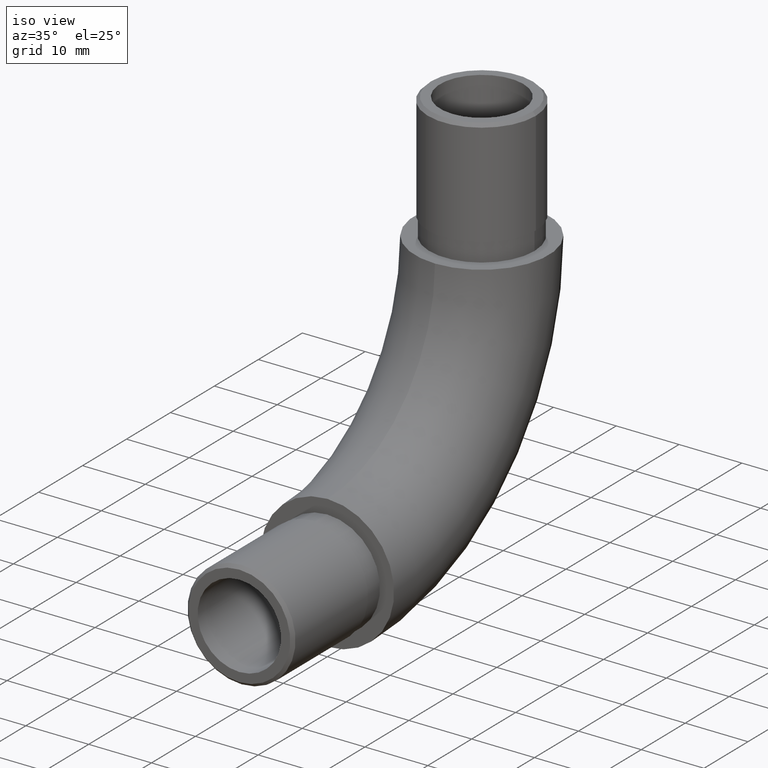
[diagram: clean part render]
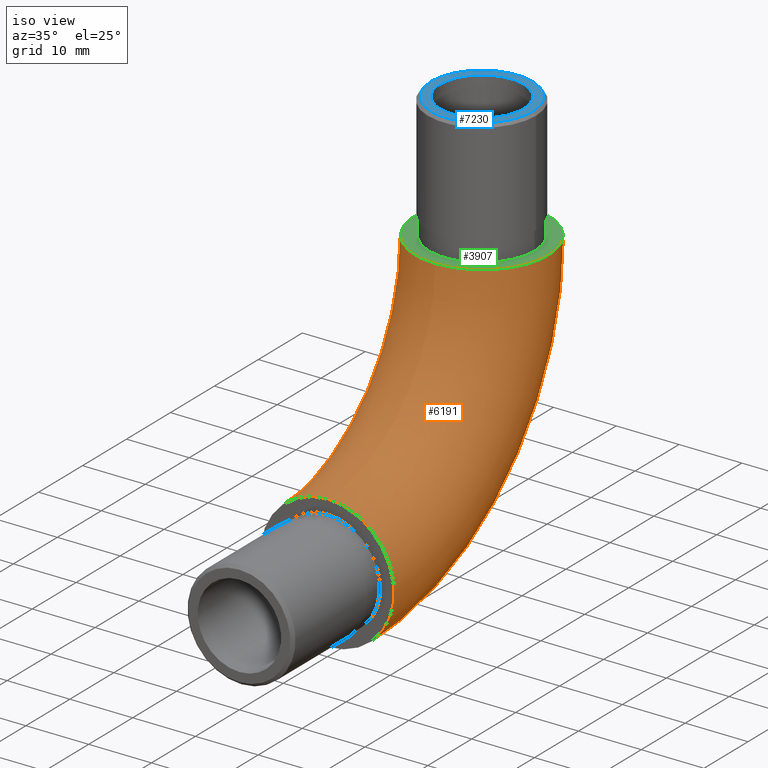
[diagram: same view with three faces highlighted in distinct colors, each labeled with its STEP entity id]
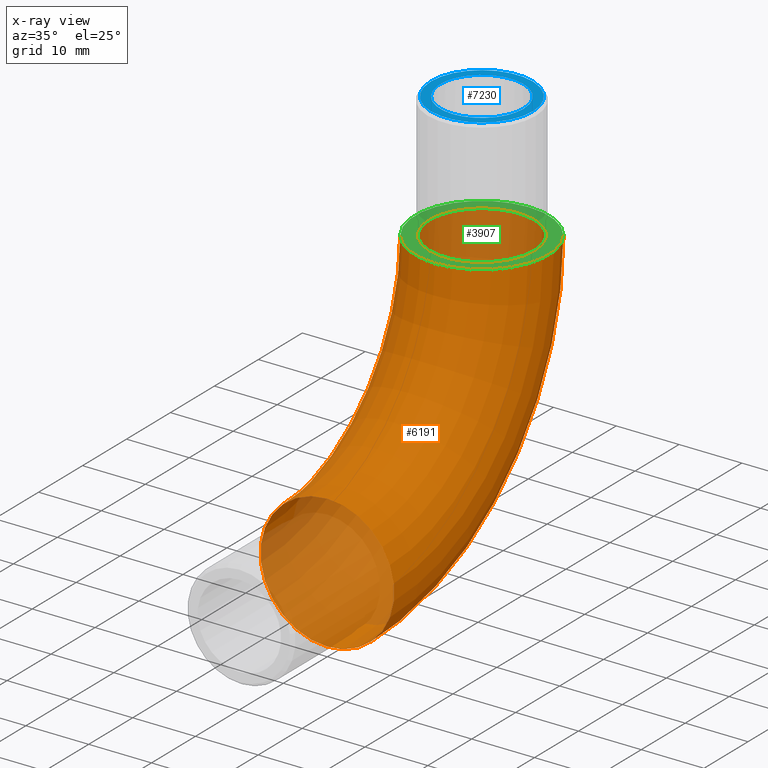
[diagram: x-ray of the same camera — body ghosted, the three highlighted faces saturated]
A machine part, iso view with three faces highlighted in distinct colors.
The next image is the same camera in x-ray (body ghosted, the three faces saturated) — at least one of them is partly hidden behind the body in this view.
Their STEP definitions:

[orange] entity #6191 — the highlighted toroidal blend (fillet) surface has major radius 35.15 mm and minor (blend) radius 10.65 mm.
#367 = EDGE_CURVE ( 'NONE', #9327, #9327, #9104, .T. ) ;
#540 = ORIENTED_EDGE ( 'NONE', *, *, #9462, .T. ) ;
#728 = DIRECTION ( 'NONE',  ( 0.0000000000000000000, 0.0000000000000000000, 1.000000000000000000 ) ) ;
#823 = ORIENTED_EDGE ( 'NONE', *, *, #367, .F. ) ;
#1932 = AXIS2_PLACEMENT_3D ( 'NONE', #9878, #5102, #3002 ) ;
#2001 = CARTESIAN_POINT ( 'NONE',  ( 0.0000000000000000000, 0.0000000000000000000, 21.30000000000000100 ) ) ;
#2927 = EDGE_LOOP ( 'NONE', ( #540 ) ) ;
#3002 = DIRECTION ( 'NONE',  ( 0.0000000000000000000, 0.0000000000000000000, 1.000000000000000000 ) ) ;
#5049 = CIRCLE ( 'NONE', #10344, 10.65000000000000000 ) ;
#5102 = DIRECTION ( 'NONE',  ( -1.000000000000000000, -0.0000000000000000000, -0.0000000000000000000 ) ) ;
#5300 = DIRECTION ( 'NONE',  ( 0.0000000000000000000, -1.000000000000000000, 0.0000000000000000000 ) ) ;
#5563 = TOROIDAL_SURFACE ( 'NONE', #1932, 35.15000000000000600, 10.65000000000000000 ) ;
#6191 = ADVANCED_FACE ( 'NONE', ( #8792, #10758 ), #5563, .T. ) ;
#7292 = CARTESIAN_POINT ( 'NONE',  ( 0.0000000000000000000, 0.0000000000000000000, 10.65000000000000000 ) ) ;
#7650 = VERTEX_POINT ( 'NONE', #2001 ) ;
#8792 = FACE_OUTER_BOUND ( 'NONE', #10911, .T. ) ;
#9104 = CIRCLE ( 'NONE', #9924, 10.65000000000000000 ) ;
#9327 = VERTEX_POINT ( 'NONE', #9998 ) ;
#9462 = EDGE_CURVE ( 'NONE', #7650, #7650, #5049, .T. ) ;
#9556 = DIRECTION ( 'NONE',  ( 0.0000000000000000000, 1.000000000000000000, 0.0000000000000000000 ) ) ;
#9878 = CARTESIAN_POINT ( 'NONE',  ( 0.0000000000000000000, -6.938893903907228400E-015, 45.80000000000000400 ) ) ;
#9924 = AXIS2_PLACEMENT_3D ( 'NONE', #12080, #10047, #5300 ) ;
#9998 = CARTESIAN_POINT ( 'NONE',  ( 0.0000000000000000000, 24.50000000000000000, 45.80000000000000400 ) ) ;
#10047 = DIRECTION ( 'NONE',  ( 0.0000000000000000000, 6.123233995736766000E-017, 1.000000000000000000 ) ) ;
#10344 = AXIS2_PLACEMENT_3D ( 'NONE', #7292, #9556, #728 ) ;
#10758 = FACE_OUTER_BOUND ( 'NONE', #2927, .T. ) ;
#10911 = EDGE_LOOP ( 'NONE', ( #823 ) ) ;
#12080 = CARTESIAN_POINT ( 'NONE',  ( 0.0000000000000000000, 35.14999999999999900, 45.80000000000000400 ) ) ;

[blue] entity #7230 — the highlighted planar face has unit normal (0, 0, 1).
#151 = FACE_BOUND ( 'NONE', #11834, .T. ) ;
#427 = DIRECTION ( 'NONE',  ( 0.0000000000000000000, 0.0000000000000000000, 1.000000000000000000 ) ) ;
#471 = CARTESIAN_POINT ( 'NONE',  ( 0.0000000000000000000, 35.14999999999999900, 65.80000000000001100 ) ) ;
#567 = AXIS2_PLACEMENT_3D ( 'NONE', #7629, #4843, #1855 ) ;
#1393 = ORIENTED_EDGE ( 'NONE', *, *, #2831, .T. ) ;
#1855 = DIRECTION ( 'NONE',  ( 1.000000000000000000, 0.0000000000000000000, 0.0000000000000000000 ) ) ;
#1924 = DIRECTION ( 'NONE',  ( 0.0000000000000000000, 0.0000000000000000000, 1.000000000000000000 ) ) ;
#2831 = EDGE_CURVE ( 'NONE', #8609, #8609, #11985, .T. ) ;
#4085 = CARTESIAN_POINT ( 'NONE',  ( 6.650000000000003000, 35.14999999999999900, 65.80000000000001100 ) ) ;
#4370 = AXIS2_PLACEMENT_3D ( 'NONE', #4866, #1924, #12699 ) ;
#4843 = DIRECTION ( 'NONE',  ( 0.0000000000000000000, 0.0000000000000000000, 1.000000000000000000 ) ) ;
#4866 = CARTESIAN_POINT ( 'NONE',  ( 0.0000000000000000000, 35.14999999999999900, 65.80000000000001100 ) ) ;
#4920 = CIRCLE ( 'NONE', #9582, 6.650000000000003000 ) ;
#5376 = DIRECTION ( 'NONE',  ( 1.000000000000000000, 0.0000000000000000000, 0.0000000000000000000 ) ) ;
#6002 = CARTESIAN_POINT ( 'NONE',  ( 8.099999999999996100, 35.14999999999999900, 65.80000000000001100 ) ) ;
#6625 = EDGE_CURVE ( 'NONE', #11493, #11493, #4920, .T. ) ;
#7230 = ADVANCED_FACE ( 'NONE', ( #9381, #151 ), #10672, .T. ) ;
#7629 = CARTESIAN_POINT ( 'NONE',  ( 0.0000000000000000000, 35.14999999999999900, 65.80000000000001100 ) ) ;
#8609 = VERTEX_POINT ( 'NONE', #6002 ) ;
#9381 = FACE_OUTER_BOUND ( 'NONE', #12455, .T. ) ;
#9582 = AXIS2_PLACEMENT_3D ( 'NONE', #471, #427, #5376 ) ;
#10672 = PLANE ( 'NONE',  #4370 ) ;
#11493 = VERTEX_POINT ( 'NONE', #4085 ) ;
#11834 = EDGE_LOOP ( 'NONE', ( #12492 ) ) ;
#11985 = CIRCLE ( 'NONE', #567, 8.099999999999996100 ) ;
#12455 = EDGE_LOOP ( 'NONE', ( #1393 ) ) ;
#12492 = ORIENTED_EDGE ( 'NONE', *, *, #6625, .F. ) ;
#12699 = DIRECTION ( 'NONE',  ( 1.000000000000000000, 0.0000000000000000000, -0.0000000000000000000 ) ) ;

[green] entity #3907 — the highlighted planar face has unit normal (0, 0, 1).
#112 = ORIENTED_EDGE ( 'NONE', *, *, #367, .T. ) ;
#323 = ORIENTED_EDGE ( 'NONE', *, *, #12231, .F. ) ;
#367 = EDGE_CURVE ( 'NONE', #9327, #9327, #9104, .T. ) ;
#2537 = VERTEX_POINT ( 'NONE', #11783 ) ;
#2608 = AXIS2_PLACEMENT_3D ( 'NONE', #5129, #8931, #11936 ) ;
#3774 = CIRCLE ( 'NONE', #6311, 8.400000000000002100 ) ;
#3907 = ADVANCED_FACE ( 'NONE', ( #4891, #5507 ), #11066, .T. ) ;
#4127 = CARTESIAN_POINT ( 'NONE',  ( 0.0000000000000000000, 35.14999999999999900, 45.80000000000000400 ) ) ;
#4891 = FACE_OUTER_BOUND ( 'NONE', #7522, .T. ) ;
#5129 = CARTESIAN_POINT ( 'NONE',  ( 0.0000000000000000000, 35.14999999999999900, 45.80000000000000400 ) ) ;
#5300 = DIRECTION ( 'NONE',  ( 0.0000000000000000000, -1.000000000000000000, 0.0000000000000000000 ) ) ;
#5507 = FACE_BOUND ( 'NONE', #6334, .T. ) ;
#6311 = AXIS2_PLACEMENT_3D ( 'NONE', #4127, #8964, #7212 ) ;
#6334 = EDGE_LOOP ( 'NONE', ( #323 ) ) ;
#7212 = DIRECTION ( 'NONE',  ( 1.000000000000000000, 0.0000000000000000000, 0.0000000000000000000 ) ) ;
#7522 = EDGE_LOOP ( 'NONE', ( #112 ) ) ;
#8931 = DIRECTION ( 'NONE',  ( 0.0000000000000000000, 6.123233995736766000E-017, 1.000000000000000000 ) ) ;
#8964 = DIRECTION ( 'NONE',  ( 0.0000000000000000000, 0.0000000000000000000, 1.000000000000000000 ) ) ;
#9104 = CIRCLE ( 'NONE', #9924, 10.65000000000000000 ) ;
#9327 = VERTEX_POINT ( 'NONE', #9998 ) ;
#9924 = AXIS2_PLACEMENT_3D ( 'NONE', #12080, #10047, #5300 ) ;
#9998 = CARTESIAN_POINT ( 'NONE',  ( 0.0000000000000000000, 24.50000000000000000, 45.80000000000000400 ) ) ;
#10047 = DIRECTION ( 'NONE',  ( 0.0000000000000000000, 6.123233995736766000E-017, 1.000000000000000000 ) ) ;
#11066 = PLANE ( 'NONE',  #2608 ) ;
#11783 = CARTESIAN_POINT ( 'NONE',  ( 8.400000000000002100, 35.14999999999999900, 45.80000000000000400 ) ) ;
#11936 = DIRECTION ( 'NONE',  ( 0.0000000000000000000, -1.000000000000000000, 6.123233995736766000E-017 ) ) ;
#12080 = CARTESIAN_POINT ( 'NONE',  ( 0.0000000000000000000, 35.14999999999999900, 45.80000000000000400 ) ) ;
#12231 = EDGE_CURVE ( 'NONE', #2537, #2537, #3774, .T. ) ;